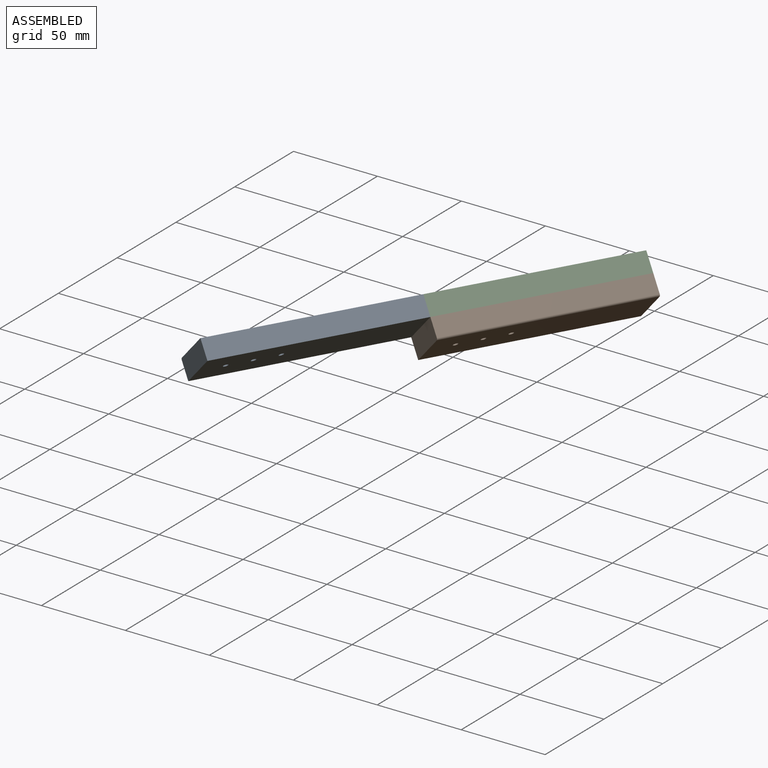
[diagram: assembled view]
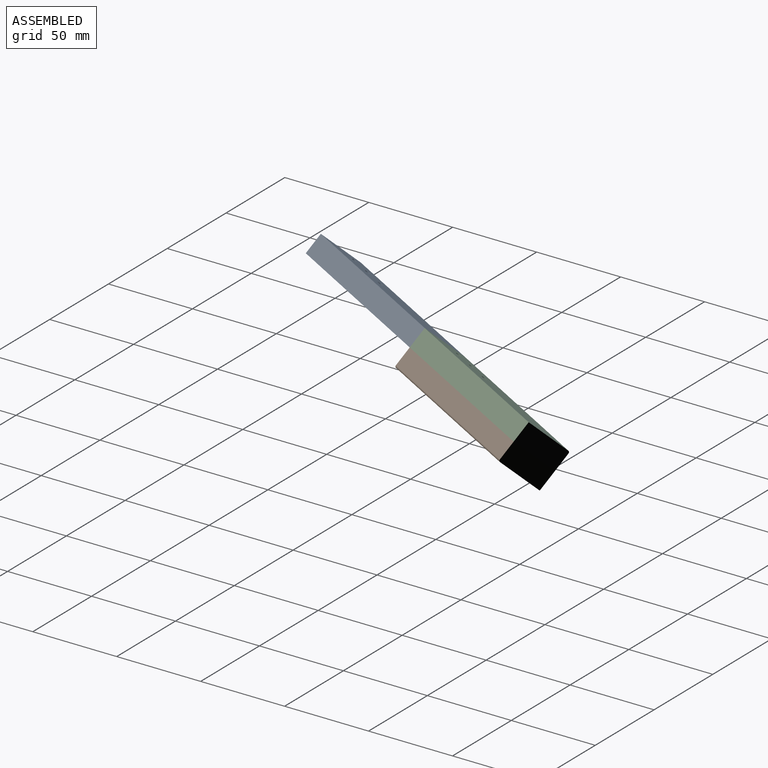
[diagram: assembled view, second angle]
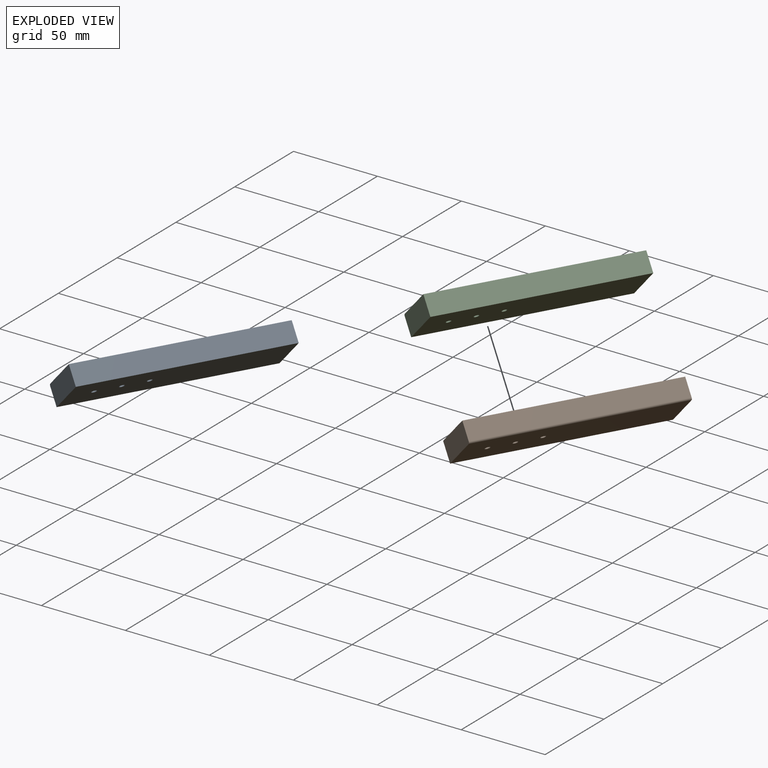
[diagram: exploded view]
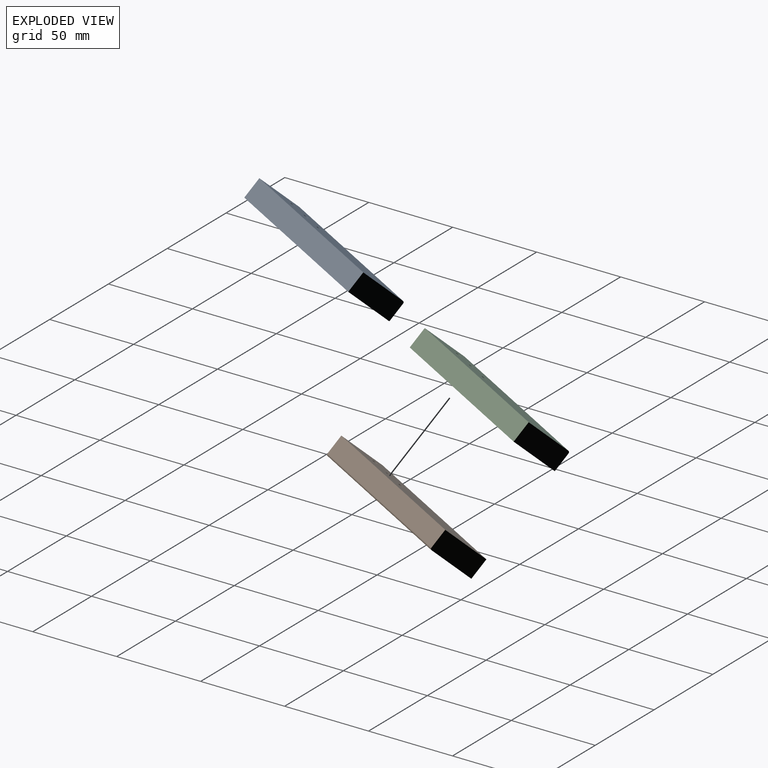
[diagram: exploded view, second angle]
ASSEMBLY  parts=3 mates=3
PART A: 10 faces, bbox 30x120x12 mm
  f0: plane 120x11mm, normal (-1,0,0), area 1320mm2, adj f1,f4,f5,f9
  f1: plane 120x30mm, normal (0,0,-1), area 3578.8mm2, adj f0,f2,f4,f5,f6,f7,f8
  f2: plane 120x12mm, normal (1,0,0), area 1440mm2, adj f1,f3,f4,f5
  f3: plane 120x29mm, normal (0,0,1), area 3458.8mm2, adj f2,f4,f5,f6,f7,f8,f9
  f4: plane 30x12mm, normal (0,1,0), area 359.8mm2, adj f0,f1,f2,f3,f9
  f5: plane 30x12mm, normal (0,-1,0), area 359.8mm2, adj f0,f1,f2,f3,f9
  f6: cylinder r=1.5mm len=12mm, axis (0,0,1), area 113.1mm2, adj f1,f3
  f7: cylinder r=1.5mm len=12mm, axis (0,0,1), area 113.1mm2, adj f1,f3
  f8: cylinder r=1.5mm len=12mm, axis (0,0,1), area 113.1mm2, adj f1,f3
  f9: cylinder r=1mm len=120mm, axis (0,-1,0), area 188.5mm2, adj f0,f3,f4,f5
PART B: same geometry as A
PART C: same geometry as A
PLACE A rot(axis=(-0.22,-0.8,-0.55),51.6deg) t=(-24.5,-90.11,-32.95)mm
PLACE B rot(axis=(0.26,0.96,-0.1),139.1deg) t=(54.67,2.74,-12.7)mm
PLACE C rot(axis=(-0.22,-0.8,-0.55),51.6deg) t=(35.5,13.81,-32.95)mm
MATE planar B.f1 <-> C.f1  axis (-0.58,0.34,0.74) through (75.17,60.39,-22.82)mm
MATE planar C.f5 <-> A.f4  axis (-0.5,-0.87,0) through (41.59,10.3,-18.39)mm
MATE planar B.f1 <-> C.f1  axis (-0.58,0.34,0.74) through (75.17,60.39,-22.82)mm
